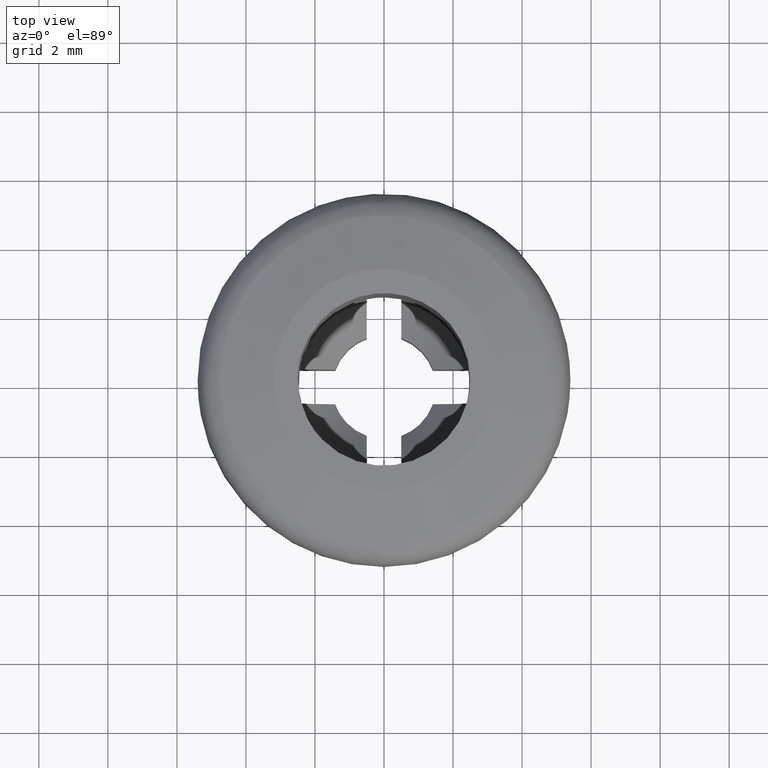
[diagram: clean part render]
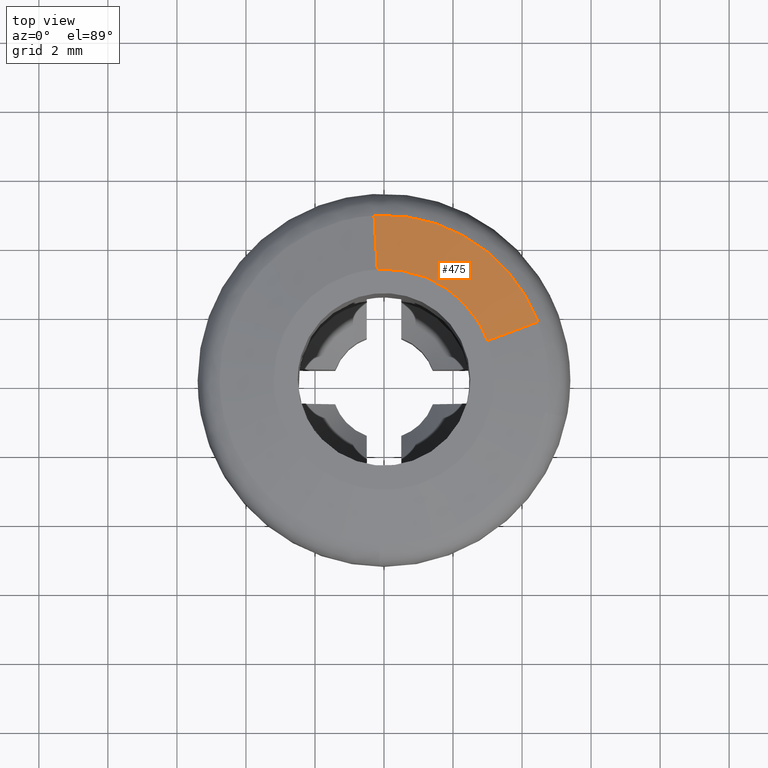
[diagram: same view with one face highlighted and labeled with its STEP entity id]
A machine part, top view. The second image highlights one B-rep face of the part: STEP entity #475.
In plain terms, the highlighted face is a freeform B-spline surface patch.
Its self-contained STEP definition (entity closure, byte-faithful):
#286=CARTESIAN_POINT('',(4.460727903095101,1.675461056570736,-0.356201380946435));
#287=VERTEX_POINT('',#286);
#303=CARTESIAN_POINT('',(2.995659452077921,1.125177518080948,-6.613125E-013));
#304=VERTEX_POINT('',#303);
#305=CARTESIAN_POINT('',(2.995659452077921,1.125177518080948,-6.613125E-013));
#306=CARTESIAN_POINT('',(4.460727903095101,1.675461056570736,-0.356201380946435));
#307=QUASI_UNIFORM_CURVE('',1,(#305,#306),.UNSPECIFIED.,.F.,.U.);
#308=EDGE_CURVE('',#304,#287,#307,.T.);
#342=CARTESIAN_POINT('',(-0.195355326531273,3.194031354951814,-6.923082E-013));
#343=VERTEX_POINT('',#342);
#357=CARTESIAN_POINT('',(-0.290896535476083,4.756116313046521,-0.356201380947459));
#358=VERTEX_POINT('',#357);
#359=CARTESIAN_POINT('',(-0.195355326531273,3.194031354951814,-6.923082E-013));
#360=CARTESIAN_POINT('',(-0.290896535476083,4.756116313046521,-0.356201380947459));
#361=QUASI_UNIFORM_CURVE('',1,(#359,#360),.UNSPECIFIED.,.F.,.U.);
#362=EDGE_CURVE('',#343,#358,#361,.T.);
#427=CARTESIAN_POINT('',(-0.192966796287614,3.154979230988479,0.008905034525747));
#428=CARTESIAN_POINT('',(2.137919634136549,3.297542352346430,0.008905034525747));
#429=CARTESIAN_POINT('',(2.959032740801472,1.111420429586882,0.008905034525747));
#430=CARTESIAN_POINT('',(-0.293344778948125,4.796144740470282,-0.365329041418765));
#431=CARTESIAN_POINT('',(3.250028370424351,5.012866726456774,-0.365329041418765));
#432=CARTESIAN_POINT('',(4.498270282504490,1.689562072376702,-0.365329041418765));
#440=(BOUNDED_SURFACE()B_SPLINE_SURFACE(2,1,((#427,#430),(#428,#431),(#429,#432)),.UNSPECIFIED.,.F.,.F.,.U.)B_SPLINE_SURFACE_WITH_KNOTS((3,3),(2,2),(0.0,6.325677286425155),(0.0,1.0),.UNSPECIFIED.)GEOMETRIC_REPRESENTATION_ITEM()RATIONAL_B_SPLINE_SURFACE(((1.0,1.0),(0.765685424949238,0.765685424949238),(0.906274169979695,0.906274169979695)))REPRESENTATION_ITEM('')SURFACE());
#441=CARTESIAN_POINT('',(-0.290896535476083,4.756116313046521,-0.356201380947459));
#442=CARTESIAN_POINT('',(-0.145584039542904,4.765004006035631,-0.356201380946417));
#443=CARTESIAN_POINT('',(0.0,4.765004006035630,-0.356201380946417));
#444=CARTESIAN_POINT('',(3.300287498101468,4.765004006035629,-0.356201380946417));
#445=CARTESIAN_POINT('',(4.460727903095101,1.675461056570736,-0.356201380946435));
#453=(BOUNDED_CURVE()B_SPLINE_CURVE(2,(#441,#442,#443,#444,#445),.UNSPECIFIED.,.F.,.U.)B_SPLINE_CURVE_WITH_KNOTS((3,2,3),(0.239332962239822,0.250000000000000,0.440284170898858),.UNSPECIFIED.)CURVE()GEOMETRIC_REPRESENTATION_ITEM()RATIONAL_B_SPLINE_CURVE((0.976072041668601,0.987502787900867,1.0,0.777068226784738,0.893499554635702))REPRESENTATION_ITEM(''));
#454=EDGE_CURVE('',#358,#287,#453,.T.);
#455=ORIENTED_EDGE('',*,*,#454,.F.);
#456=ORIENTED_EDGE('',*,*,#362,.F.);
#457=CARTESIAN_POINT('',(-0.195355326531273,3.194031354951814,-6.923082E-013));
#458=CARTESIAN_POINT('',(-0.097768842575085,3.200000000000000,0.0));
#459=CARTESIAN_POINT('',(0.0,3.200000000000000,0.0));
#460=CARTESIAN_POINT('',(2.216350706179636,3.200000000000001,0.0));
#461=CARTESIAN_POINT('',(2.995659452077921,1.125177518080948,-6.613125E-013));
#469=(BOUNDED_CURVE()B_SPLINE_CURVE(2,(#457,#458,#459,#460,#461),.UNSPECIFIED.,.F.,.U.)B_SPLINE_CURVE_WITH_KNOTS((3,2,3),(0.239332962239857,0.250000000000000,0.440284170896074),.UNSPECIFIED.)CURVE()GEOMETRIC_REPRESENTATION_ITEM()RATIONAL_B_SPLINE_CURVE((0.976072041668676,0.987502787900908,1.0,0.777068226788000,0.893499554632295))REPRESENTATION_ITEM(''));
#470=EDGE_CURVE('',#343,#304,#469,.T.);
#471=ORIENTED_EDGE('',*,*,#470,.T.);
#472=ORIENTED_EDGE('',*,*,#308,.T.);
#473=EDGE_LOOP('',(#455,#456,#471,#472));
#474=FACE_OUTER_BOUND('',#473,.T.);
#475=ADVANCED_FACE('',(#474),#440,.T.);